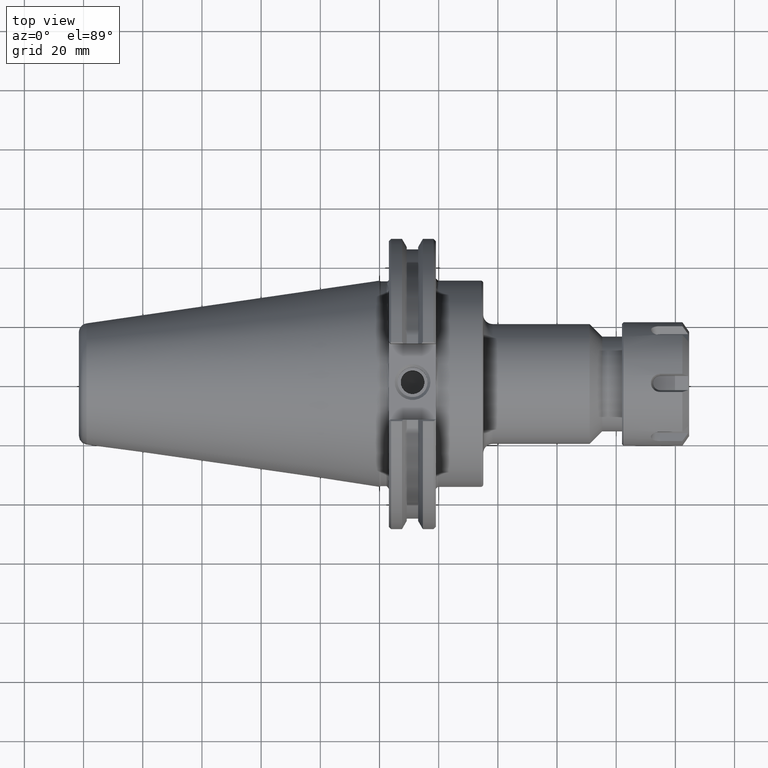
[diagram: clean part render]
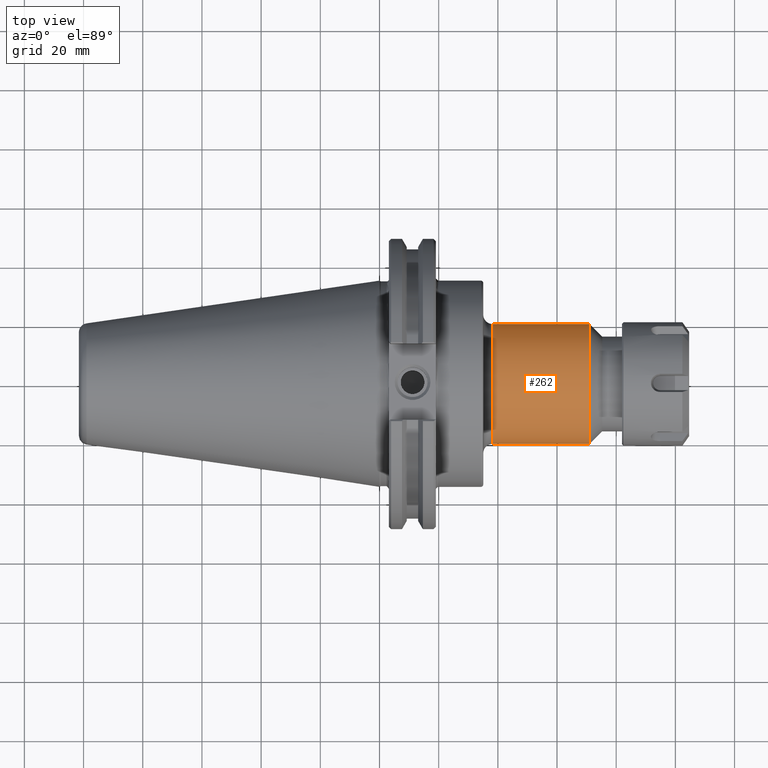
[diagram: same view with one face highlighted and labeled with its STEP entity id]
A machine part, top view. The second image highlights one B-rep face of the part: STEP entity #262.
In plain terms, the highlighted cylindrical surface (bore or boss wall) has radius 20.2565 mm, axis along (1, 0, 0).
Its self-contained STEP definition (entity closure, byte-faithful):
#228=CARTESIAN_POINT('',(1.505,0.7975,0.0));
#229=VERTEX_POINT('',#228);
#230=CARTESIAN_POINT('',(1.505,0.0,0.0));
#231=DIRECTION('',(-1.0,0.0,0.0));
#232=DIRECTION('',(0.0,-1.0,0.0));
#233=AXIS2_PLACEMENT_3D('',#230,#231,#232);
#234=CIRCLE('',#233,0.7975);
#235=EDGE_CURVE('',#229,#229,#234,.T.);
#243=CARTESIAN_POINT('',(2.08821062992126,0.0,0.0));
#244=DIRECTION('',(1.0,0.0,0.0));
#245=DIRECTION('',(0.0,1.0,0.0));
#246=AXIS2_PLACEMENT_3D('',#243,#244,#245);
#247=CYLINDRICAL_SURFACE('',#246,0.7975);
#248=CARTESIAN_POINT('',(2.79642125984252,0.7975,0.0));
#249=VERTEX_POINT('',#248);
#250=CARTESIAN_POINT('',(2.79642125984252,0.0,0.0));
#251=DIRECTION('',(1.0,0.0,0.0));
#252=DIRECTION('',(0.0,1.0,0.0));
#253=AXIS2_PLACEMENT_3D('',#250,#251,#252);
#254=CIRCLE('',#253,0.7975);
#255=EDGE_CURVE('',#249,#249,#254,.T.);
#256=ORIENTED_EDGE('',*,*,#255,.F.);
#257=EDGE_LOOP('',(#256));
#258=FACE_OUTER_BOUND('',#257,.T.);
#259=ORIENTED_EDGE('',*,*,#235,.F.);
#260=EDGE_LOOP('',(#259));
#261=FACE_BOUND('',#260,.T.);
#262=ADVANCED_FACE('',(#258,#261),#247,.T.);